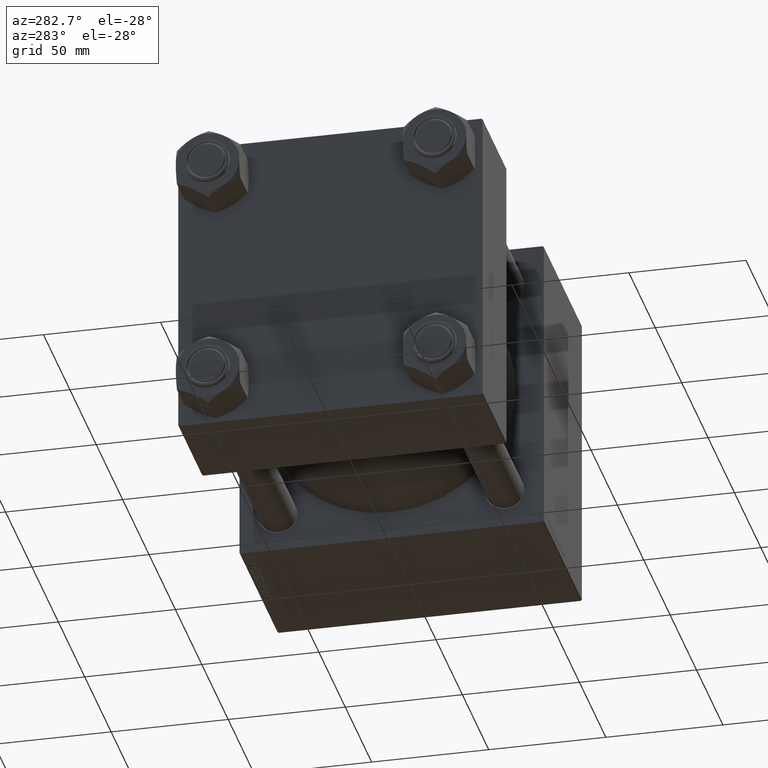
[diagram: clean part render]
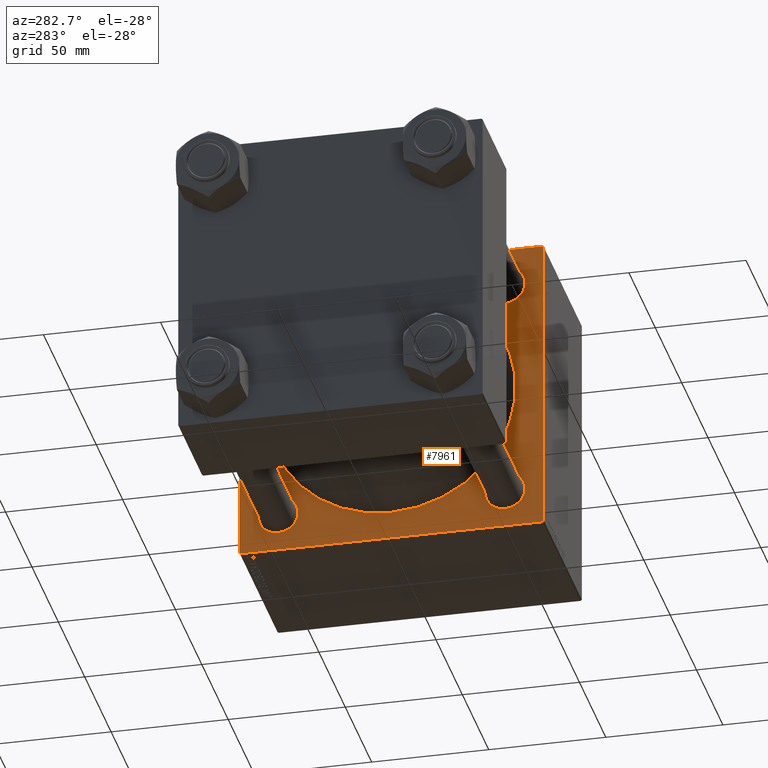
[diagram: same view with one face highlighted and labeled with its STEP entity id]
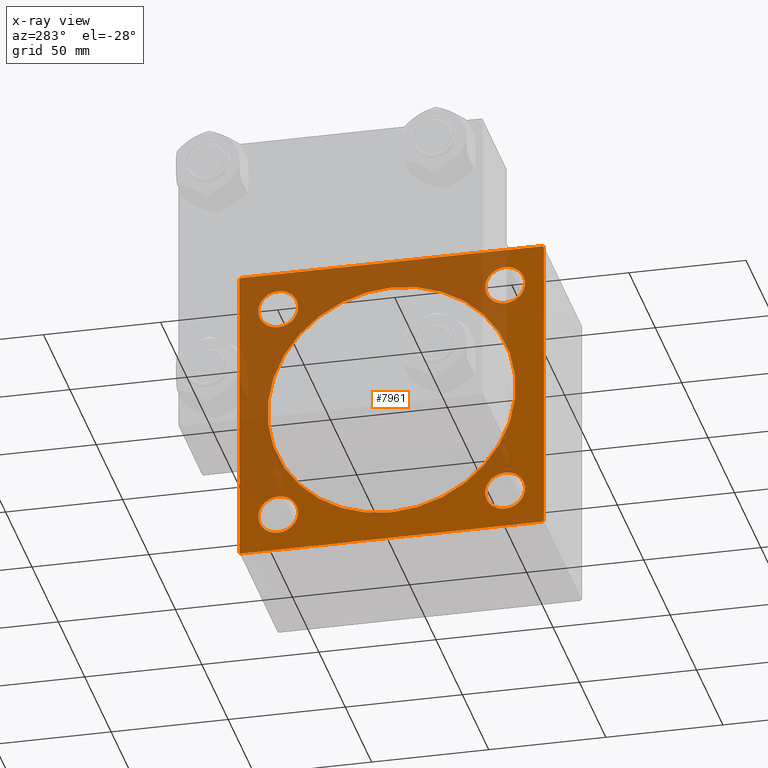
[diagram: x-ray of the same camera — body ghosted, the highlighted face saturated]
A machine part, auxiliary view. The second image highlights one B-rep face of the part: STEP entity #7961.
The next image is the same camera in x-ray: the body ghosted, the highlighted face saturated — about 48% of this face is hidden behind the body in this view.
In plain terms, the highlighted planar face has unit normal (-1, 0, 0).
Its self-contained STEP definition (entity closure, byte-faithful):
#419 = VERTEX_POINT ( 'NONE', #15698 ) ;
#452 = ORIENTED_EDGE ( 'NONE', *, *, #20278, .T. ) ;
#509 = ORIENTED_EDGE ( 'NONE', *, *, #40456, .T. ) ;
#517 = CARTESIAN_POINT ( 'NONE',  ( 115.9999999999999858, 65.00000000000002842, 65.00000000000001421 ) ) ;
#1205 = ORIENTED_EDGE ( 'NONE', *, *, #4466, .T. ) ;
#1550 = DIRECTION ( 'NONE',  ( 0.000000000000000000, 0.7071067811865279218, -0.7071067811865671127 ) ) ;
#2057 = CARTESIAN_POINT ( 'NONE',  ( 115.9999999999999858, 48.45000000000000995, -56.95000000000002416 ) ) ;
#2067 = CARTESIAN_POINT ( 'NONE',  ( 115.9999999999999858, 48.45000000000000995, -48.45000000000001705 ) ) ;
#2221 = CIRCLE ( 'NONE', #24287, 8.500000000000007105 ) ;
#2275 = EDGE_LOOP ( 'NONE', ( #20919, #48353 ) ) ;
#2349 = EDGE_CURVE ( 'NONE', #15687, #33615, #30312, .T. ) ;
#2604 = CARTESIAN_POINT ( 'NONE',  ( 115.9999999999999858, -64.75000000000180478, -64.74999999999820943 ) ) ;
#2670 = ORIENTED_EDGE ( 'NONE', *, *, #20973, .T. ) ;
#2779 = CARTESIAN_POINT ( 'NONE',  ( 115.9999999999999858, -48.44999999999999574, -56.95000000000003837 ) ) ;
#3104 = CARTESIAN_POINT ( 'NONE',  ( 115.9999999999999858, -64.75000000000093792, 64.74999999999914735 ) ) ;
#4466 = EDGE_CURVE ( 'NONE', #16300, #31162, #34505, .T. ) ;
#4551 = CARTESIAN_POINT ( 'NONE',  ( 115.9999999999999858, 65.00000000000002842, 65.00000000000001421 ) ) ;
#5466 = CIRCLE ( 'NONE', #41436, 8.500000000000007105 ) ;
#5898 = CARTESIAN_POINT ( 'NONE',  ( 115.9999999999999858, -64.99999999999998579, -64.50000000000002842 ) ) ;
#5949 = DIRECTION ( 'NONE',  ( 0.000000000000000000, -0.7071067811865279218, 0.7071067811865672237 ) ) ;
#5989 = AXIS2_PLACEMENT_3D ( 'NONE', #22321, #21828, #29998 ) ;
#6007 = VERTEX_POINT ( 'NONE', #50605 ) ;
#6213 = FACE_OUTER_BOUND ( 'NONE', #9210, .T. ) ;
#6290 = DIRECTION ( 'NONE',  ( 0.000000000000000000, 0.000000000000000000, 1.000000000000000000 ) ) ;
#6648 = DIRECTION ( 'NONE',  ( 0.000000000000000000, 0.000000000000000000, 1.000000000000000000 ) ) ;
#6936 = CARTESIAN_POINT ( 'NONE',  ( 115.9999999999999858, -64.99999999999998579, 65.00000000000000000 ) ) ;
#7055 = CARTESIAN_POINT ( 'NONE',  ( 115.9999999999999858, 64.74999999999822364, -64.75000000000180478 ) ) ;
#7381 = VECTOR ( 'NONE', #22669, 1000.000000000000000 ) ;
#7688 = CARTESIAN_POINT ( 'NONE',  ( 115.9999999999999858, -48.44999999999999574, 48.45000000000003126 ) ) ;
#7961 = ADVANCED_FACE ( 'NONE', ( #37921, #25673, #14415, #9816, #42016, #6213 ), #34075, .T. ) ;
#8460 = DIRECTION ( 'NONE',  ( 1.000000000000000000, -0.000000000000000000, 0.000000000000000000 ) ) ;
#8515 = AXIS2_PLACEMENT_3D ( 'NONE', #2067, #33292, #48929 ) ;
#8668 = LINE ( 'NONE', #4551, #10237 ) ;
#9210 = EDGE_LOOP ( 'NONE', ( #452, #22970, #36064, #25079, #38593, #45042, #509, #15683 ) ) ;
#9295 = EDGE_CURVE ( 'NONE', #31162, #16300, #50200, .T. ) ;
#9324 = EDGE_LOOP ( 'NONE', ( #2670, #26628 ) ) ;
#9816 = FACE_BOUND ( 'NONE', #9324, .T. ) ;
#10237 = VECTOR ( 'NONE', #24268, 1000.000000000000000 ) ;
#10575 = CARTESIAN_POINT ( 'NONE',  ( 115.9999999999999858, -64.50000000000002842, -65.00000000000001421 ) ) ;
#10785 = DIRECTION ( 'NONE',  ( 0.000000000000000000, 0.000000000000000000, -1.000000000000000000 ) ) ;
#10997 = CARTESIAN_POINT ( 'NONE',  ( 115.9999999999999858, -48.44999999999999574, -48.45000000000003126 ) ) ;
#11010 = EDGE_CURVE ( 'NONE', #11213, #42835, #15103, .T. ) ;
#11213 = VERTEX_POINT ( 'NONE', #21146 ) ;
#11537 = VERTEX_POINT ( 'NONE', #5898 ) ;
#11724 = CARTESIAN_POINT ( 'NONE',  ( 115.9999999999999858, -64.50000000000008527, 65.00000000000000000 ) ) ;
#11768 = AXIS2_PLACEMENT_3D ( 'NONE', #10997, #26115, #6648 ) ;
#11893 = DIRECTION ( 'NONE',  ( 1.000000000000000000, -0.000000000000000000, 0.000000000000000000 ) ) ;
#12003 = CARTESIAN_POINT ( 'NONE',  ( 115.9999999999999858, -48.44999999999999574, 48.45000000000003126 ) ) ;
#13327 = CIRCLE ( 'NONE', #31288, 53.00000000000000711 ) ;
#14415 = FACE_BOUND ( 'NONE', #21102, .T. ) ;
#15103 = CIRCLE ( 'NONE', #20832, 53.00000000000000711 ) ;
#15555 = CARTESIAN_POINT ( 'NONE',  ( 115.9999999999999858, 65.00000000000002842, 64.50000000000001421 ) ) ;
#15683 = ORIENTED_EDGE ( 'NONE', *, *, #29971, .T. ) ;
#15687 = VERTEX_POINT ( 'NONE', #38754 ) ;
#15698 = CARTESIAN_POINT ( 'NONE',  ( 115.9999999999999858, 65.00000000000002842, -64.50000000000001421 ) ) ;
#15958 = CARTESIAN_POINT ( 'NONE',  ( 115.9999999999999858, 48.45000000000000995, -39.95000000000000284 ) ) ;
#16113 = VECTOR ( 'NONE', #38180, 999.9999999999998863 ) ;
#16300 = VERTEX_POINT ( 'NONE', #2057 ) ;
#18266 = VERTEX_POINT ( 'NONE', #10575 ) ;
#18409 = DIRECTION ( 'NONE',  ( 0.000000000000000000, 0.000000000000000000, -1.000000000000000000 ) ) ;
#19026 = CARTESIAN_POINT ( 'NONE',  ( 115.9999999999999858, 48.45000000000000995, 39.95000000000000284 ) ) ;
#19161 = VERTEX_POINT ( 'NONE', #27945 ) ;
#20278 = EDGE_CURVE ( 'NONE', #37843, #18266, #28404, .T. ) ;
#20649 = VECTOR ( 'NONE', #43273, 1000.000000000000000 ) ;
#20832 = AXIS2_PLACEMENT_3D ( 'NONE', #45502, #22952, #41662 ) ;
#20919 = ORIENTED_EDGE ( 'NONE', *, *, #2349, .T. ) ;
#20973 = EDGE_CURVE ( 'NONE', #48726, #36648, #2221, .T. ) ;
#21102 = EDGE_LOOP ( 'NONE', ( #47279, #1205 ) ) ;
#21146 = CARTESIAN_POINT ( 'NONE',  ( 115.9999999999999858, 3.888542821515762466E-15, -53.00000000000000711 ) ) ;
#21240 = ORIENTED_EDGE ( 'NONE', *, *, #47553, .T. ) ;
#21828 = DIRECTION ( 'NONE',  ( -1.000000000000000000, 0.000000000000000000, -0.000000000000000000 ) ) ;
#22321 = CARTESIAN_POINT ( 'NONE',  ( 115.9999999999999858, 0.000000000000000000, 0.000000000000000000 ) ) ;
#22485 = CARTESIAN_POINT ( 'NONE',  ( 115.9999999999999858, 64.50000000000005684, 65.00000000000001421 ) ) ;
#22669 = DIRECTION ( 'NONE',  ( -0.000000000000000000, -0.7071067811865671127, -0.7071067811865279218 ) ) ;
#22952 = DIRECTION ( 'NONE',  ( 1.000000000000000000, 0.000000000000000000, 0.000000000000000000 ) ) ;
#22970 = ORIENTED_EDGE ( 'NONE', *, *, #37674, .T. ) ;
#24062 = DIRECTION ( 'NONE',  ( 0.000000000000000000, 0.000000000000000000, 1.000000000000000000 ) ) ;
#24268 = DIRECTION ( 'NONE',  ( 0.000000000000000000, 0.000000000000000000, -1.000000000000000000 ) ) ;
#24287 = AXIS2_PLACEMENT_3D ( 'NONE', #44441, #36497, #43931 ) ;
#24309 = ORIENTED_EDGE ( 'NONE', *, *, #11010, .T. ) ;
#24411 = DIRECTION ( 'NONE',  ( 0.000000000000000000, 0.000000000000000000, 1.000000000000000000 ) ) ;
#25079 = ORIENTED_EDGE ( 'NONE', *, *, #46742, .T. ) ;
#25673 = FACE_BOUND ( 'NONE', #29721, .T. ) ;
#26115 = DIRECTION ( 'NONE',  ( 1.000000000000000000, -0.000000000000000000, 0.000000000000000000 ) ) ;
#26586 = CARTESIAN_POINT ( 'NONE',  ( 115.9999999999999858, -2.602085213965210642E-15, 0.000000000000000000 ) ) ;
#26628 = ORIENTED_EDGE ( 'NONE', *, *, #34740, .T. ) ;
#26697 = VECTOR ( 'NONE', #1550, 1000.000000000000000 ) ;
#27945 = CARTESIAN_POINT ( 'NONE',  ( 115.9999999999999858, -64.99999999999998579, 64.50000000000008527 ) ) ;
#28404 = LINE ( 'NONE', #35558, #47981 ) ;
#29208 = CARTESIAN_POINT ( 'NONE',  ( 115.9999999999999858, 64.75000000000181899, 64.74999999999822364 ) ) ;
#29702 = VERTEX_POINT ( 'NONE', #11724 ) ;
#29721 = EDGE_LOOP ( 'NONE', ( #39437, #21240 ) ) ;
#29971 = EDGE_CURVE ( 'NONE', #419, #37843, #30585, .T. ) ;
#29998 = DIRECTION ( 'NONE',  ( -0.000000000000000000, 0.000000000000000000, 1.000000000000000000 ) ) ;
#30312 = CIRCLE ( 'NONE', #36016, 8.500000000000007105 ) ;
#30585 = LINE ( 'NONE', #7055, #7381 ) ;
#31162 = VERTEX_POINT ( 'NONE', #15958 ) ;
#31288 = AXIS2_PLACEMENT_3D ( 'NONE', #26586, #41204, #18409 ) ;
#31407 = VECTOR ( 'NONE', #10785, 1000.000000000000000 ) ;
#31522 = EDGE_CURVE ( 'NONE', #35048, #29702, #42511, .T. ) ;
#31740 = CARTESIAN_POINT ( 'NONE',  ( 115.9999999999999858, 48.45000000000000995, -48.45000000000001705 ) ) ;
#32185 = DIRECTION ( 'NONE',  ( 0.000000000000000000, 0.000000000000000000, 1.000000000000000000 ) ) ;
#32458 = EDGE_CURVE ( 'NONE', #42835, #11213, #13327, .T. ) ;
#32995 = CARTESIAN_POINT ( 'NONE',  ( 115.9999999999999858, 64.50000000000002842, -64.99999999999998579 ) ) ;
#33292 = DIRECTION ( 'NONE',  ( 1.000000000000000000, -0.000000000000000000, 0.000000000000000000 ) ) ;
#33615 = VERTEX_POINT ( 'NONE', #48596 ) ;
#33922 = VECTOR ( 'NONE', #5949, 1000.000000000000000 ) ;
#34046 = DIRECTION ( 'NONE',  ( 0.000000000000000000, 0.000000000000000000, 1.000000000000000000 ) ) ;
#34075 = PLANE ( 'NONE',  #5989 ) ;
#34078 = LINE ( 'NONE', #3104, #16113 ) ;
#34505 = CIRCLE ( 'NONE', #35308, 8.500000000000007105 ) ;
#34740 = EDGE_CURVE ( 'NONE', #36648, #48726, #41967, .T. ) ;
#34937 = EDGE_LOOP ( 'NONE', ( #41474, #24309 ) ) ;
#35048 = VERTEX_POINT ( 'NONE', #22485 ) ;
#35308 = AXIS2_PLACEMENT_3D ( 'NONE', #31740, #8460, #24062 ) ;
#35437 = EDGE_CURVE ( 'NONE', #19161, #11537, #45845, .T. ) ;
#35558 = CARTESIAN_POINT ( 'NONE',  ( 115.9999999999999858, 65.00000000000002842, -64.99999999999998579 ) ) ;
#36016 = AXIS2_PLACEMENT_3D ( 'NONE', #7688, #45835, #34046 ) ;
#36064 = ORIENTED_EDGE ( 'NONE', *, *, #35437, .F. ) ;
#36282 = DIRECTION ( 'NONE',  ( 1.000000000000000000, -0.000000000000000000, 0.000000000000000000 ) ) ;
#36497 = DIRECTION ( 'NONE',  ( 1.000000000000000000, -0.000000000000000000, 0.000000000000000000 ) ) ;
#36648 = VERTEX_POINT ( 'NONE', #2779 ) ;
#36873 = LINE ( 'NONE', #29208, #26697 ) ;
#37674 = EDGE_CURVE ( 'NONE', #18266, #11537, #41525, .T. ) ;
#37843 = VERTEX_POINT ( 'NONE', #32995 ) ;
#37921 = FACE_BOUND ( 'NONE', #2275, .T. ) ;
#38180 = DIRECTION ( 'NONE',  ( -0.000000000000000000, 0.7071067811865376918, 0.7071067811865574537 ) ) ;
#38593 = ORIENTED_EDGE ( 'NONE', *, *, #31522, .F. ) ;
#38754 = CARTESIAN_POINT ( 'NONE',  ( 115.9999999999999858, -48.44999999999999574, 56.95000000000003837 ) ) ;
#39437 = ORIENTED_EDGE ( 'NONE', *, *, #45298, .T. ) ;
#39959 = CARTESIAN_POINT ( 'NONE',  ( 115.9999999999999858, -48.44999999999999574, -39.95000000000001705 ) ) ;
#40456 = EDGE_CURVE ( 'NONE', #48110, #419, #8668, .T. ) ;
#40496 = EDGE_CURVE ( 'NONE', #33615, #15687, #49478, .T. ) ;
#41204 = DIRECTION ( 'NONE',  ( 1.000000000000000000, 0.000000000000000000, 0.000000000000000000 ) ) ;
#41382 = VERTEX_POINT ( 'NONE', #19026 ) ;
#41436 = AXIS2_PLACEMENT_3D ( 'NONE', #47458, #11893, #24411 ) ;
#41474 = ORIENTED_EDGE ( 'NONE', *, *, #32458, .T. ) ;
#41525 = LINE ( 'NONE', #2604, #33922 ) ;
#41662 = DIRECTION ( 'NONE',  ( 0.000000000000000000, 0.000000000000000000, -1.000000000000000000 ) ) ;
#41967 = CIRCLE ( 'NONE', #11768, 8.500000000000007105 ) ;
#42016 = FACE_BOUND ( 'NONE', #34937, .T. ) ;
#42511 = LINE ( 'NONE', #517, #20649 ) ;
#42835 = VERTEX_POINT ( 'NONE', #47566 ) ;
#42919 = AXIS2_PLACEMENT_3D ( 'NONE', #12003, #36282, #32185 ) ;
#43273 = DIRECTION ( 'NONE',  ( 0.000000000000000000, -1.000000000000000000, -1.067522139062650425E-16 ) ) ;
#43498 = DIRECTION ( 'NONE',  ( 0.000000000000000000, -1.000000000000000000, -2.135044278125300850E-16 ) ) ;
#43931 = DIRECTION ( 'NONE',  ( 0.000000000000000000, 0.000000000000000000, 1.000000000000000000 ) ) ;
#44441 = CARTESIAN_POINT ( 'NONE',  ( 115.9999999999999858, -48.44999999999999574, -48.45000000000003126 ) ) ;
#44799 = AXIS2_PLACEMENT_3D ( 'NONE', #49054, #45193, #6290 ) ;
#44891 = EDGE_CURVE ( 'NONE', #35048, #48110, #36873, .T. ) ;
#45042 = ORIENTED_EDGE ( 'NONE', *, *, #44891, .T. ) ;
#45193 = DIRECTION ( 'NONE',  ( 1.000000000000000000, -0.000000000000000000, 0.000000000000000000 ) ) ;
#45298 = EDGE_CURVE ( 'NONE', #6007, #41382, #5466, .T. ) ;
#45502 = CARTESIAN_POINT ( 'NONE',  ( 115.9999999999999858, -2.602085213965210642E-15, 0.000000000000000000 ) ) ;
#45835 = DIRECTION ( 'NONE',  ( 1.000000000000000000, -0.000000000000000000, 0.000000000000000000 ) ) ;
#45845 = LINE ( 'NONE', #6936, #31407 ) ;
#46742 = EDGE_CURVE ( 'NONE', #19161, #29702, #34078, .T. ) ;
#47279 = ORIENTED_EDGE ( 'NONE', *, *, #9295, .T. ) ;
#47458 = CARTESIAN_POINT ( 'NONE',  ( 115.9999999999999858, 48.45000000000000995, 48.45000000000001705 ) ) ;
#47553 = EDGE_CURVE ( 'NONE', #41382, #6007, #48053, .T. ) ;
#47566 = CARTESIAN_POINT ( 'NONE',  ( 115.9999999999999858, -2.602085213965210642E-15, 53.00000000000000711 ) ) ;
#47981 = VECTOR ( 'NONE', #43498, 1000.000000000000000 ) ;
#48053 = CIRCLE ( 'NONE', #44799, 8.500000000000007105 ) ;
#48110 = VERTEX_POINT ( 'NONE', #15555 ) ;
#48353 = ORIENTED_EDGE ( 'NONE', *, *, #40496, .T. ) ;
#48596 = CARTESIAN_POINT ( 'NONE',  ( 115.9999999999999858, -48.44999999999999574, 39.95000000000001705 ) ) ;
#48726 = VERTEX_POINT ( 'NONE', #39959 ) ;
#48929 = DIRECTION ( 'NONE',  ( 0.000000000000000000, 0.000000000000000000, 1.000000000000000000 ) ) ;
#49054 = CARTESIAN_POINT ( 'NONE',  ( 115.9999999999999858, 48.45000000000000995, 48.45000000000001705 ) ) ;
#49478 = CIRCLE ( 'NONE', #42919, 8.500000000000007105 ) ;
#50200 = CIRCLE ( 'NONE', #8515, 8.500000000000007105 ) ;
#50605 = CARTESIAN_POINT ( 'NONE',  ( 115.9999999999999858, 48.45000000000000995, 56.95000000000002416 ) ) ;